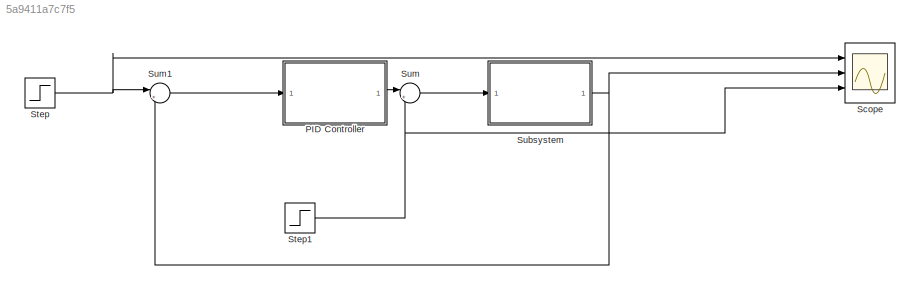
MODEL slx_5a9411a7c7f5
KIND model
CONFIG AbsTol = auto
CONFIG EnableMultiTasking = off
CONFIG FixedStep = auto
CONFIG MaxStep = auto
CONFIG MinStep = auto
CONFIG RelTol = 1e-3
CONFIG SampleTimeConstraint = Unconstrained
CONFIG SolverName = ode45
CONFIG StartTime = 0.0
CONFIG StopTime = 0.4
BLOCK [ModelReference] PID Controller
  ModelNameDialog = PID_Controller
  ModelReferenceVersion = 1.4
  Ports = [1, 1]
BLOCK [Scope] Scope
  Floating = off
  NumInputPorts = 3
  Ports = [3]
  ScopeSpecificationString = Simulink.scopes.TimeScopeBlockCfg('CurrentConfiguration', extmgr.ConfigurationSet(extmgr.Configuration('Core','General UI',true),extmgr.Configuration('Core','Source UI',true),extmgr.Configuration('Sources','WiredSimulink',true),extmgr.Configuration('Visuals','Time Domain',true,'SerializedDisplays',{struct('MinYLimReal','0.9','MaxYLimReal','1.1','YLabelReal','','MinYLimMag','0.9','MaxYLimMag','1.1'...<+2728ch>
BLOCK [Step] Step
  SampleTime = 0
  Time = 0
BLOCK [Step] Step1
  SampleTime = 0
  Time = 0.01
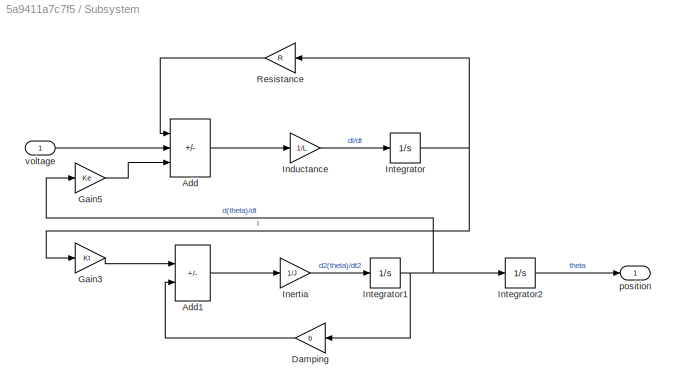
BLOCK [SubSystem] Subsystem
  Ports = [1, 1]
  RequestExecContextInheritance = off
BLOCK [Sum] Subsystem/Add
  IconShape = rectangular
  Inputs = -+-
  Ports = [3, 1]
BLOCK [Sum] Subsystem/Add1
  IconShape = rectangular
  Inputs = +-
  Ports = [2, 1]
BLOCK [Gain] Subsystem/Damping
  Gain = b
BLOCK [Gain] Subsystem/Gain3
  Gain = Kt
BLOCK [Gain] Subsystem/Gain5
  Gain = Ke
BLOCK [Gain] Subsystem/Inductance
  Gain = 1/L
BLOCK [Gain] Subsystem/Inertia
  Gain = 1/J
BLOCK [Integrator] Subsystem/Integrator
  Ports = [1, 1]
BLOCK [Integrator] Subsystem/Integrator1
  Ports = [1, 1]
BLOCK [Integrator] Subsystem/Integrator2
  Ports = [1, 1]
BLOCK [Gain] Subsystem/Resistance
  Gain = R
BLOCK [Outport] Subsystem/position
BLOCK [Inport] Subsystem/voltage
BLOCK [Sum] Sum
  Inputs = |++
  Ports = [2, 1]
BLOCK [Sum] Sum1
  Inputs = |+-
  Ports = [2, 1]
LINE PID Controller:1 -> Sum:1
NET Step1:1 -> Scope:3, Sum:2
NET Step:1 -> Scope:1, Sum1:1
LINE Subsystem/Add1:1 -> Subsystem/Inertia:1
LINE Subsystem/Add:1 -> Subsystem/Inductance:1
LINE Subsystem/Damping:1 -> Subsystem/Add1:2
LINE Subsystem/Gain3:1 -> Subsystem/Add1:1
LINE Subsystem/Gain5:1 -> Subsystem/Add:3
LINE Subsystem/Inductance:1 -> Subsystem/Integrator:1
LINE Subsystem/Inertia:1 -> Subsystem/Integrator1:1
NET Subsystem/Integrator1:1 -> Subsystem/Damping:1, Subsystem/Gain5:1, Subsystem/Integrator2:1
LINE Subsystem/Integrator2:1 -> Subsystem/position:1
NET Subsystem/Integrator:1 -> Subsystem/Gain3:1, Subsystem/Resistance:1
LINE Subsystem/Resistance:1 -> Subsystem/Add:1
LINE Subsystem/voltage:1 -> Subsystem/Add:2
NET Subsystem:1 -> Scope:2, Sum1:2
LINE Sum1:1 -> PID Controller:1
LINE Sum:1 -> Subsystem:1
note: NET lines group one-source signal fan-out (src -> all destinations, sorted); 1:1 wires keep LINE
